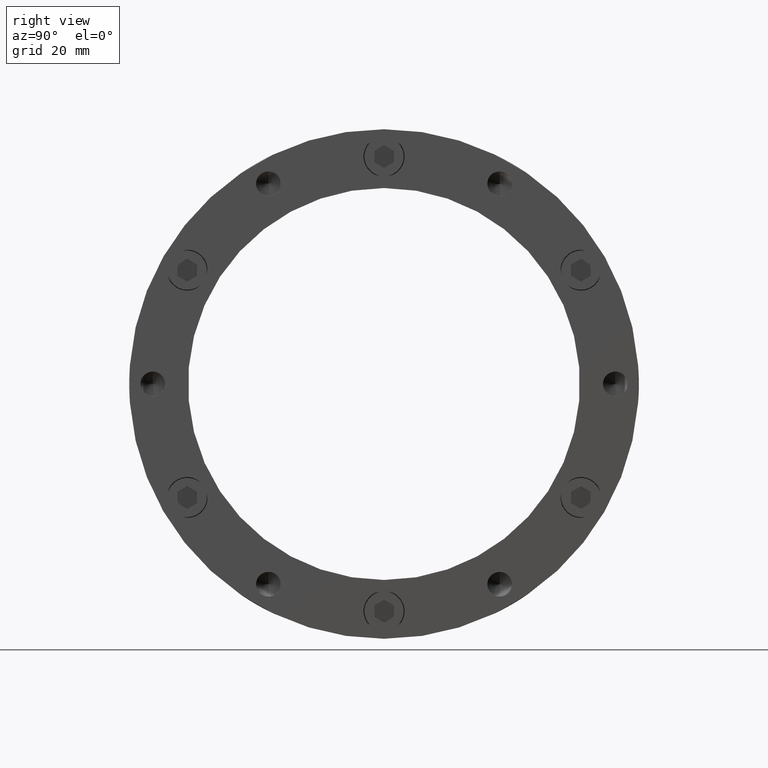
[diagram: clean part render]
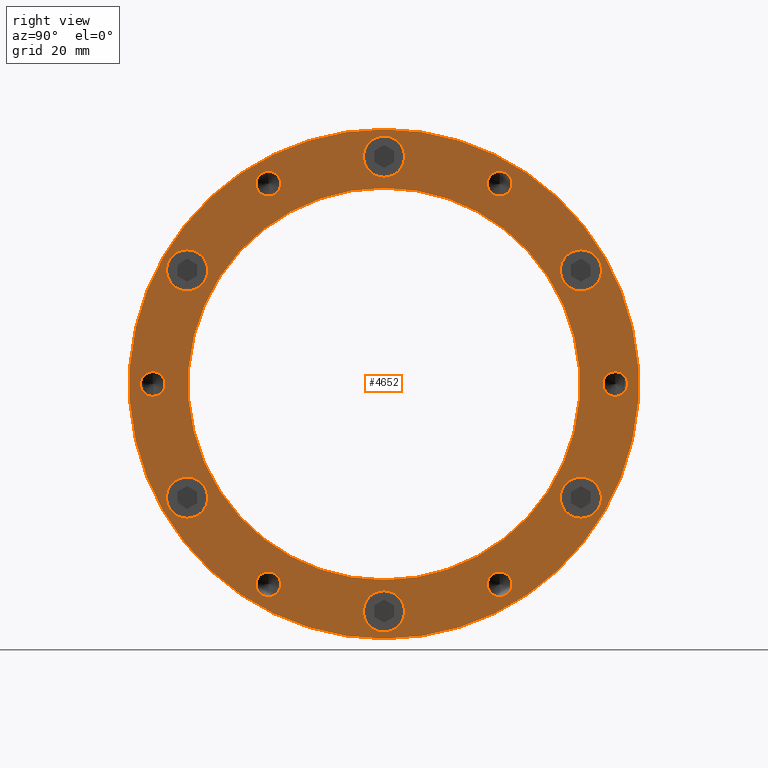
[diagram: same view with one face highlighted and labeled with its STEP entity id]
A machine part, right view. The second image highlights one B-rep face of the part: STEP entity #4652.
In plain terms, the highlighted planar face has unit normal (1, 0, 0).
Its self-contained STEP definition (entity closure, byte-faithful):
#59 = FACE_BOUND ( 'NONE', #3239, .T. ) ;
#60 = FACE_BOUND ( 'NONE', #3323, .T. ) ;
#62 = FACE_BOUND ( 'NONE', #3322, .T. ) ;
#65 = FACE_BOUND ( 'NONE', #3240, .T. ) ;
#66 = FACE_OUTER_BOUND ( 'NONE', #3258, .T. ) ;
#69 = FACE_BOUND ( 'NONE', #3373, .T. ) ;
#70 = FACE_BOUND ( 'NONE', #3273, .T. ) ;
#71 = FACE_BOUND ( 'NONE', #3263, .T. ) ;
#74 = FACE_BOUND ( 'NONE', #3200, .T. ) ;
#76 = FACE_BOUND ( 'NONE', #3423, .T. ) ;
#77 = FACE_BOUND ( 'NONE', #3362, .T. ) ;
#78 = FACE_BOUND ( 'NONE', #3248, .T. ) ;
#79 = FACE_BOUND ( 'NONE', #3387, .T. ) ;
#81 = FACE_BOUND ( 'NONE', #3282, .T. ) ;
#309 = CIRCLE ( 'NONE', #4095, 3.149999999999999900 ) ;
#310 = CIRCLE ( 'NONE', #4096, 3.149999999999999900 ) ;
#311 = CIRCLE ( 'NONE', #4097, 3.149999999999999900 ) ;
#345 = CIRCLE ( 'NONE', #4117, 50.00000000000000000 ) ;
#353 = CIRCLE ( 'NONE', #4119, 3.149999999999999900 ) ;
#356 = CIRCLE ( 'NONE', #4120, 3.149999999999999900 ) ;
#363 = CIRCLE ( 'NONE', #4122, 3.149999999999999900 ) ;
#397 = EDGE_CURVE ( 'NONE', #3192, #3264, #3957, .T. ) ;
#399 = EDGE_CURVE ( 'NONE', #3432, #3243, #3952, .T. ) ;
#416 = EDGE_CURVE ( 'NONE', #3281, #3227, #3928, .T. ) ;
#434 = EDGE_CURVE ( 'NONE', #3231, #3228, #2913, .T. ) ;
#448 = EDGE_CURVE ( 'NONE', #3209, #3208, #2894, .T. ) ;
#463 = EDGE_CURVE ( 'NONE', #3223, #3224, #2880, .T. ) ;
#471 = EDGE_CURVE ( 'NONE', #3245, #3266, #2871, .T. ) ;
#472 = EDGE_CURVE ( 'NONE', #3216, #3213, #2872, .T. ) ;
#474 = EDGE_CURVE ( 'NONE', #3212, #3217, #2869, .T. ) ;
#480 = EDGE_CURVE ( 'NONE', #3232, #3236, #2862, .T. ) ;
#508 = EDGE_CURVE ( 'NONE', #3227, #3281, #3732, .T. ) ;
#511 = EDGE_CURVE ( 'NONE', #3190, #3185, #3728, .T. ) ;
#514 = EDGE_CURVE ( 'NONE', #3224, #3223, #3724, .T. ) ;
#519 = EDGE_CURVE ( 'NONE', #3217, #3212, #3719, .T. ) ;
#524 = EDGE_CURVE ( 'NONE', #3228, #3231, #3711, .T. ) ;
#526 = EDGE_CURVE ( 'NONE', #3213, #3216, #3709, .T. ) ;
#532 = EDGE_CURVE ( 'NONE', #3203, #3207, #3697, .T. ) ;
#537 = EDGE_CURVE ( 'NONE', #3198, #3199, #3691, .T. ) ;
#545 = EDGE_CURVE ( 'NONE', #3243, #3432, #3679, .T. ) ;
#547 = EDGE_CURVE ( 'NONE', #3236, #3232, #3677, .T. ) ;
#552 = EDGE_CURVE ( 'NONE', #3219, #3218, #3670, .T. ) ;
#560 = EDGE_CURVE ( 'NONE', #3208, #3209, #363, .T. ) ;
#564 = EDGE_CURVE ( 'NONE', #3218, #3219, #356, .T. ) ;
#566 = EDGE_CURVE ( 'NONE', #3266, #3245, #353, .T. ) ;
#569 = EDGE_CURVE ( 'NONE', #3264, #3192, #345, .T. ) ;
#620 = CARTESIAN_POINT ( 'NONE',  ( 31.99999999999998600, 0.0000000000000000000, 0.0000000000000000000 ) ) ;
#621 = DIRECTION ( 'NONE',  ( -1.000000000000000000, -0.0000000000000000000, -0.0000000000000000000 ) ) ;
#622 = DIRECTION ( 'NONE',  ( 0.0000000000000000000, 0.0000000000000000000, -1.000000000000000000 ) ) ;
#629 = CARTESIAN_POINT ( 'NONE',  ( 31.99999999999998600, 0.0000000000000000000, 0.0000000000000000000 ) ) ;
#630 = DIRECTION ( 'NONE',  ( -1.000000000000000000, -0.0000000000000000000, -0.0000000000000000000 ) ) ;
#631 = DIRECTION ( 'NONE',  ( 0.0000000000000000000, 0.0000000000000000000, -1.000000000000000000 ) ) ;
#671 = CARTESIAN_POINT ( 'NONE',  ( 31.99999999999998600, 0.0000000000000000000, 58.00000000000002800 ) ) ;
#672 = DIRECTION ( 'NONE',  ( -1.000000000000000000, -0.0000000000000000000, -0.0000000000000000000 ) ) ;
#673 = DIRECTION ( 'NONE',  ( 0.0000000000000000000, 0.0000000000000000000, -1.000000000000000000 ) ) ;
#715 = CARTESIAN_POINT ( 'NONE',  ( 31.99999999999998600, -50.22947341949745900, 29.00000000000001800 ) ) ;
#716 = DIRECTION ( 'NONE',  ( -1.000000000000000000, -0.0000000000000000000, -0.0000000000000000000 ) ) ;
#717 = DIRECTION ( 'NONE',  ( 0.0000000000000000000, 0.0000000000000000000, -1.000000000000000000 ) ) ;
#753 = CARTESIAN_POINT ( 'NONE',  ( 31.99999999999998600, -59.00000000000000000, -4.440892000000000200E-014 ) ) ;
#754 = DIRECTION ( 'NONE',  ( -1.000000000000000000, -0.0000000000000000000, -0.0000000000000000000 ) ) ;
#755 = DIRECTION ( 'NONE',  ( 0.0000000000000000000, 0.0000000000000000000, -1.000000000000000000 ) ) ;
#798 = CARTESIAN_POINT ( 'NONE',  ( 31.99999999999998600, -8.881783999999999800E-015, -58.00000000000003600 ) ) ;
#799 = DIRECTION ( 'NONE',  ( -1.000000000000000000, -0.0000000000000000000, -0.0000000000000000000 ) ) ;
#800 = DIRECTION ( 'NONE',  ( 0.0000000000000000000, 0.0000000000000000000, -1.000000000000000000 ) ) ;
#822 = CARTESIAN_POINT ( 'NONE',  ( 31.99999999999998600, -29.49999999999996100, -51.09549882328190100 ) ) ;
#823 = DIRECTION ( 'NONE',  ( -1.000000000000000000, -0.0000000000000000000, -0.0000000000000000000 ) ) ;
#824 = DIRECTION ( 'NONE',  ( 0.0000000000000000000, 0.0000000000000000000, -1.000000000000000000 ) ) ;
#825 = CARTESIAN_POINT ( 'NONE',  ( 31.99999999999998600, 50.22947341949748800, 28.99999999999997200 ) ) ;
#826 = DIRECTION ( 'NONE',  ( -1.000000000000000000, -0.0000000000000000000, -0.0000000000000000000 ) ) ;
#827 = DIRECTION ( 'NONE',  ( 0.0000000000000000000, 0.0000000000000000000, -1.000000000000000000 ) ) ;
#831 = CARTESIAN_POINT ( 'NONE',  ( 31.99999999999998600, 50.22947341949745200, -29.00000000000003600 ) ) ;
#832 = DIRECTION ( 'NONE',  ( -1.000000000000000000, -0.0000000000000000000, -0.0000000000000000000 ) ) ;
#833 = DIRECTION ( 'NONE',  ( 0.0000000000000000000, 0.0000000000000000000, -1.000000000000000000 ) ) ;
#850 = CARTESIAN_POINT ( 'NONE',  ( 31.99999999999998600, -50.22947341949746700, -29.00000000000000400 ) ) ;
#851 = DIRECTION ( 'NONE',  ( -1.000000000000000000, -0.0000000000000000000, -0.0000000000000000000 ) ) ;
#852 = DIRECTION ( 'NONE',  ( 0.0000000000000000000, 0.0000000000000000000, -1.000000000000000000 ) ) ;
#1006 = CARTESIAN_POINT ( 'NONE',  ( 31.99999999999998600, 0.0000000000000000000, 58.00000000000002800 ) ) ;
#1007 = DIRECTION ( 'NONE',  ( -1.000000000000000000, -0.0000000000000000000, -0.0000000000000000000 ) ) ;
#1008 = DIRECTION ( 'NONE',  ( 0.0000000000000000000, 0.0000000000000000000, -1.000000000000000000 ) ) ;
#1018 = CARTESIAN_POINT ( 'NONE',  ( 31.99999999999998600, 29.50000000000000000, 51.09549882328189300 ) ) ;
#1019 = DIRECTION ( 'NONE',  ( -1.000000000000000000, -0.0000000000000000000, -0.0000000000000000000 ) ) ;
#1020 = DIRECTION ( 'NONE',  ( 0.0000000000000000000, 0.0000000000000000000, -1.000000000000000000 ) ) ;
#1022 = CARTESIAN_POINT ( 'NONE',  ( 31.99999999999998600, -8.881783999999999800E-015, -58.00000000000003600 ) ) ;
#1023 = DIRECTION ( 'NONE',  ( -1.000000000000000000, -0.0000000000000000000, -0.0000000000000000000 ) ) ;
#1024 = DIRECTION ( 'NONE',  ( 0.0000000000000000000, 0.0000000000000000000, -1.000000000000000000 ) ) ;
#1040 = CARTESIAN_POINT ( 'NONE',  ( 31.99999999999998600, 50.22947341949745200, -29.00000000000003600 ) ) ;
#1041 = DIRECTION ( 'NONE',  ( -1.000000000000000000, -0.0000000000000000000, -0.0000000000000000000 ) ) ;
#1042 = DIRECTION ( 'NONE',  ( 0.0000000000000000000, 0.0000000000000000000, -1.000000000000000000 ) ) ;
#1051 = CARTESIAN_POINT ( 'NONE',  ( 31.99999999999998600, -50.22947341949745900, 29.00000000000001800 ) ) ;
#1052 = DIRECTION ( 'NONE',  ( -1.000000000000000000, -0.0000000000000000000, -0.0000000000000000000 ) ) ;
#1053 = DIRECTION ( 'NONE',  ( 0.0000000000000000000, 0.0000000000000000000, -1.000000000000000000 ) ) ;
#1056 = CARTESIAN_POINT ( 'NONE',  ( 31.99999999999998600, 50.22947341949748800, 28.99999999999997200 ) ) ;
#1057 = DIRECTION ( 'NONE',  ( -1.000000000000000000, -0.0000000000000000000, -0.0000000000000000000 ) ) ;
#1058 = DIRECTION ( 'NONE',  ( 0.0000000000000000000, 0.0000000000000000000, -1.000000000000000000 ) ) ;
#1070 = CARTESIAN_POINT ( 'NONE',  ( 31.99999999999998600, 29.50000000000003600, -51.09549882328185800 ) ) ;
#1071 = DIRECTION ( 'NONE',  ( -1.000000000000000000, -0.0000000000000000000, -0.0000000000000000000 ) ) ;
#1072 = DIRECTION ( 'NONE',  ( 0.0000000000000000000, 0.0000000000000000000, -1.000000000000000000 ) ) ;
#1080 = CARTESIAN_POINT ( 'NONE',  ( 31.99999999999998600, 59.00000000000000000, 2.664535000000000000E-014 ) ) ;
#1081 = DIRECTION ( 'NONE',  ( -1.000000000000000000, -0.0000000000000000000, -0.0000000000000000000 ) ) ;
#1082 = DIRECTION ( 'NONE',  ( 0.0000000000000000000, 0.0000000000000000000, -1.000000000000000000 ) ) ;
#1102 = CARTESIAN_POINT ( 'NONE',  ( 31.99999999999998600, 0.0000000000000000000, 0.0000000000000000000 ) ) ;
#1103 = DIRECTION ( 'NONE',  ( -1.000000000000000000, -0.0000000000000000000, -0.0000000000000000000 ) ) ;
#1104 = DIRECTION ( 'NONE',  ( 0.0000000000000000000, 0.0000000000000000000, -1.000000000000000000 ) ) ;
#1108 = CARTESIAN_POINT ( 'NONE',  ( 31.99999999999998600, -50.22947341949746700, -29.00000000000000400 ) ) ;
#1109 = DIRECTION ( 'NONE',  ( -1.000000000000000000, -0.0000000000000000000, -0.0000000000000000000 ) ) ;
#1110 = DIRECTION ( 'NONE',  ( 0.0000000000000000000, 0.0000000000000000000, -1.000000000000000000 ) ) ;
#1125 = CARTESIAN_POINT ( 'NONE',  ( 31.99999999999998600, -29.50000000000004300, 51.09549882328185100 ) ) ;
#1126 = DIRECTION ( 'NONE',  ( -1.000000000000000000, -0.0000000000000000000, -0.0000000000000000000 ) ) ;
#1127 = DIRECTION ( 'NONE',  ( 0.0000000000000000000, 0.0000000000000000000, -1.000000000000000000 ) ) ;
#1143 = CARTESIAN_POINT ( 'NONE',  ( 31.99999999999998600, -59.00000000000000000, -4.440892000000000200E-014 ) ) ;
#1144 = DIRECTION ( 'NONE',  ( -1.000000000000000000, -0.0000000000000000000, -0.0000000000000000000 ) ) ;
#1145 = DIRECTION ( 'NONE',  ( 0.0000000000000000000, 0.0000000000000000000, -1.000000000000000000 ) ) ;
#1153 = CARTESIAN_POINT ( 'NONE',  ( 31.99999999999998600, -29.50000000000004300, 51.09549882328185100 ) ) ;
#1154 = DIRECTION ( 'NONE',  ( -1.000000000000000000, -0.0000000000000000000, -0.0000000000000000000 ) ) ;
#1155 = DIRECTION ( 'NONE',  ( 0.0000000000000000000, 0.0000000000000000000, -1.000000000000000000 ) ) ;
#1157 = CARTESIAN_POINT ( 'NONE',  ( 31.99999999999998600, -29.49999999999996100, -51.09549882328190100 ) ) ;
#1158 = DIRECTION ( 'NONE',  ( -1.000000000000000000, -0.0000000000000000000, -0.0000000000000000000 ) ) ;
#1159 = DIRECTION ( 'NONE',  ( 0.0000000000000000000, 0.0000000000000000000, -1.000000000000000000 ) ) ;
#1164 = CARTESIAN_POINT ( 'NONE',  ( 31.99999999999998600, 0.0000000000000000000, 0.0000000000000000000 ) ) ;
#1165 = DIRECTION ( 'NONE',  ( -1.000000000000000000, -0.0000000000000000000, -0.0000000000000000000 ) ) ;
#1166 = DIRECTION ( 'NONE',  ( 0.0000000000000000000, 0.0000000000000000000, -1.000000000000000000 ) ) ;
#1237 = CARTESIAN_POINT ( 'NONE',  ( 31.99999999999998600, 0.0000000000000000000, -50.00000000000000000 ) ) ;
#1238 = CARTESIAN_POINT ( 'NONE',  ( 31.99999999999998600, 29.50000000000000000, 51.09549882328189300 ) ) ;
#1239 = DIRECTION ( 'NONE',  ( -1.000000000000000000, -0.0000000000000000000, -0.0000000000000000000 ) ) ;
#1240 = DIRECTION ( 'NONE',  ( 0.0000000000000000000, 0.0000000000000000000, -1.000000000000000000 ) ) ;
#1242 = CARTESIAN_POINT ( 'NONE',  ( 31.99999999999998600, 29.50000000000000000, 54.24549882328189200 ) ) ;
#1243 = CARTESIAN_POINT ( 'NONE',  ( 31.99999999999998600, 59.00000000000000000, 2.664535000000000000E-014 ) ) ;
#1245 = DIRECTION ( 'NONE',  ( -1.000000000000000000, -0.0000000000000000000, -0.0000000000000000000 ) ) ;
#1247 = DIRECTION ( 'NONE',  ( 0.0000000000000000000, 0.0000000000000000000, -1.000000000000000000 ) ) ;
#1249 = CARTESIAN_POINT ( 'NONE',  ( 31.99999999999998600, 29.50000000000000000, 47.94549882328188800 ) ) ;
#1252 = CARTESIAN_POINT ( 'NONE',  ( 31.99999999999998600, 29.50000000000003600, -51.09549882328185800 ) ) ;
#1253 = EDGE_CURVE ( 'NONE', #3185, #3190, #311, .T. ) ;
#1254 = DIRECTION ( 'NONE',  ( -1.000000000000000000, -0.0000000000000000000, -0.0000000000000000000 ) ) ;
#1255 = EDGE_CURVE ( 'NONE', #3199, #3198, #310, .T. ) ;
#1256 = DIRECTION ( 'NONE',  ( 0.0000000000000000000, 0.0000000000000000000, -1.000000000000000000 ) ) ;
#1258 = EDGE_CURVE ( 'NONE', #3207, #3203, #309, .T. ) ;
#1265 = CARTESIAN_POINT ( 'NONE',  ( 31.99999999999998600, 59.00000000000000000, -3.149999999999973700 ) ) ;
#1266 = CARTESIAN_POINT ( 'NONE',  ( 31.99999999999998600, 59.00000000000000000, 3.150000000000026600 ) ) ;
#1269 = CARTESIAN_POINT ( 'NONE',  ( 31.99999999999998600, 29.50000000000003600, -54.24549882328185600 ) ) ;
#1273 = CARTESIAN_POINT ( 'NONE',  ( 31.99999999999998600, 29.50000000000003600, -47.94549882328185200 ) ) ;
#1274 = CARTESIAN_POINT ( 'NONE',  ( 31.99999999999998600, -59.00000000000000000, -3.150000000000044300 ) ) ;
#1275 = CARTESIAN_POINT ( 'NONE',  ( 31.99999999999998600, -59.00000000000000000, 3.149999999999955900 ) ) ;
#1278 = CARTESIAN_POINT ( 'NONE',  ( 31.99999999999998600, 50.22947341949745200, -23.75000000000003600 ) ) ;
#1279 = CARTESIAN_POINT ( 'NONE',  ( 31.99999999999998600, 50.22947341949748800, 23.74999999999996800 ) ) ;
#1282 = CARTESIAN_POINT ( 'NONE',  ( 31.99999999999998600, 50.22947341949748800, 34.24999999999997200 ) ) ;
#1283 = CARTESIAN_POINT ( 'NONE',  ( 31.99999999999998600, 50.22947341949745200, -34.25000000000003600 ) ) ;
#1284 = CARTESIAN_POINT ( 'NONE',  ( 31.99999999999998600, -29.50000000000004300, 47.94549882328184500 ) ) ;
#1285 = CARTESIAN_POINT ( 'NONE',  ( 31.99999999999998600, -29.50000000000004300, 54.24549882328184900 ) ) ;
#1289 = CARTESIAN_POINT ( 'NONE',  ( 31.99999999999998600, -8.238844430447640300E-015, -52.75000000000004300 ) ) ;
#1290 = CARTESIAN_POINT ( 'NONE',  ( 31.99999999999998600, -8.881783999999999800E-015, -63.25000000000004300 ) ) ;
#1293 = CARTESIAN_POINT ( 'NONE',  ( 31.99999999999998600, 6.429395695523607100E-016, 63.25000000000002800 ) ) ;
#1294 = CARTESIAN_POINT ( 'NONE',  ( 31.99999999999998600, -50.22947341949745900, 34.25000000000001400 ) ) ;
#1297 = CARTESIAN_POINT ( 'NONE',  ( 31.99999999999998600, -50.22947341949745900, 23.75000000000001800 ) ) ;
#1298 = CARTESIAN_POINT ( 'NONE',  ( 31.99999999999998600, -50.22947341949746700, -34.25000000000000000 ) ) ;
#1302 = CARTESIAN_POINT ( 'NONE',  ( 31.99999999999998600, -50.22947341949746700, -23.75000000000000400 ) ) ;
#1306 = CARTESIAN_POINT ( 'NONE',  ( 31.99999999999998600, 0.0000000000000000000, -65.00000000000000000 ) ) ;
#1307 = CARTESIAN_POINT ( 'NONE',  ( 31.99999999999998600, -29.49999999999996100, -47.94549882328189500 ) ) ;
#1314 = CARTESIAN_POINT ( 'NONE',  ( 31.99999999999998600, 6.123233995736766100E-015, 50.00000000000000000 ) ) ;
#1316 = CARTESIAN_POINT ( 'NONE',  ( 31.99999999999998600, -29.49999999999996100, -54.24549882328189900 ) ) ;
#1317 = CARTESIAN_POINT ( 'NONE',  ( 31.99999999999998600, 0.0000000000000000000, 52.75000000000003600 ) ) ;
#1327 = CARTESIAN_POINT ( 'NONE',  ( 31.99999999999998600, 7.960204194457797300E-015, 65.00000000000000000 ) ) ;
#1781 = DIRECTION ( 'NONE',  ( 1.000000000000000000, -0.0000000000000000000, 0.0000000000000000000 ) ) ;
#1785 = CARTESIAN_POINT ( 'NONE',  ( 31.99999999999998600, 57.50000000000000000, 0.0000000000000000000 ) ) ;
#1786 = PLANE ( 'NONE',  #3896 ) ;
#1787 = DIRECTION ( 'NONE',  ( 0.0000000000000000000, 0.0000000000000000000, -1.000000000000000000 ) ) ;
#2862 = CIRCLE ( 'NONE', #4160, 5.249999999999997300 ) ;
#2869 = CIRCLE ( 'NONE', #4163, 5.250000000000000900 ) ;
#2871 = CIRCLE ( 'NONE', #4166, 3.149999999999999900 ) ;
#2872 = CIRCLE ( 'NONE', #4165, 5.250000000000000900 ) ;
#2880 = CIRCLE ( 'NONE', #4174, 5.250000000000004400 ) ;
#2894 = CIRCLE ( 'NONE', #4189, 3.149999999999999900 ) ;
#2913 = CIRCLE ( 'NONE', #4201, 5.250000000000000900 ) ;
#3033 = ORIENTED_EDGE ( 'NONE', *, *, #399, .F. ) ;
#3034 = ORIENTED_EDGE ( 'NONE', *, *, #545, .F. ) ;
#3035 = ORIENTED_EDGE ( 'NONE', *, *, #1253, .T. ) ;
#3036 = ORIENTED_EDGE ( 'NONE', *, *, #511, .T. ) ;
#3037 = ORIENTED_EDGE ( 'NONE', *, *, #1255, .T. ) ;
#3038 = ORIENTED_EDGE ( 'NONE', *, *, #537, .T. ) ;
#3039 = ORIENTED_EDGE ( 'NONE', *, *, #1258, .T. ) ;
#3040 = ORIENTED_EDGE ( 'NONE', *, *, #532, .T. ) ;
#3041 = ORIENTED_EDGE ( 'NONE', *, *, #471, .T. ) ;
#3042 = ORIENTED_EDGE ( 'NONE', *, *, #566, .T. ) ;
#3043 = ORIENTED_EDGE ( 'NONE', *, *, #448, .T. ) ;
#3044 = ORIENTED_EDGE ( 'NONE', *, *, #560, .T. ) ;
#3045 = ORIENTED_EDGE ( 'NONE', *, *, #552, .T. ) ;
#3046 = ORIENTED_EDGE ( 'NONE', *, *, #564, .T. ) ;
#3047 = ORIENTED_EDGE ( 'NONE', *, *, #472, .T. ) ;
#3048 = ORIENTED_EDGE ( 'NONE', *, *, #526, .T. ) ;
#3049 = ORIENTED_EDGE ( 'NONE', *, *, #474, .T. ) ;
#3050 = ORIENTED_EDGE ( 'NONE', *, *, #519, .T. ) ;
#3051 = ORIENTED_EDGE ( 'NONE', *, *, #463, .T. ) ;
#3052 = ORIENTED_EDGE ( 'NONE', *, *, #514, .T. ) ;
#3053 = ORIENTED_EDGE ( 'NONE', *, *, #547, .T. ) ;
#3054 = ORIENTED_EDGE ( 'NONE', *, *, #480, .T. ) ;
#3055 = ORIENTED_EDGE ( 'NONE', *, *, #524, .T. ) ;
#3056 = ORIENTED_EDGE ( 'NONE', *, *, #434, .T. ) ;
#3057 = ORIENTED_EDGE ( 'NONE', *, *, #508, .T. ) ;
#3058 = ORIENTED_EDGE ( 'NONE', *, *, #416, .T. ) ;
#3059 = ORIENTED_EDGE ( 'NONE', *, *, #569, .T. ) ;
#3060 = ORIENTED_EDGE ( 'NONE', *, *, #397, .T. ) ;
#3185 = VERTEX_POINT ( 'NONE', #1242 ) ;
#3190 = VERTEX_POINT ( 'NONE', #1249 ) ;
#3192 = VERTEX_POINT ( 'NONE', #1237 ) ;
#3198 = VERTEX_POINT ( 'NONE', #1265 ) ;
#3199 = VERTEX_POINT ( 'NONE', #1266 ) ;
#3200 = EDGE_LOOP ( 'NONE', ( #3036, #3035 ) ) ;
#3203 = VERTEX_POINT ( 'NONE', #1269 ) ;
#3207 = VERTEX_POINT ( 'NONE', #1273 ) ;
#3208 = VERTEX_POINT ( 'NONE', #1274 ) ;
#3209 = VERTEX_POINT ( 'NONE', #1275 ) ;
#3212 = VERTEX_POINT ( 'NONE', #1278 ) ;
#3213 = VERTEX_POINT ( 'NONE', #1279 ) ;
#3216 = VERTEX_POINT ( 'NONE', #1282 ) ;
#3217 = VERTEX_POINT ( 'NONE', #1283 ) ;
#3218 = VERTEX_POINT ( 'NONE', #1284 ) ;
#3219 = VERTEX_POINT ( 'NONE', #1285 ) ;
#3223 = VERTEX_POINT ( 'NONE', #1289 ) ;
#3224 = VERTEX_POINT ( 'NONE', #1290 ) ;
#3227 = VERTEX_POINT ( 'NONE', #1293 ) ;
#3228 = VERTEX_POINT ( 'NONE', #1294 ) ;
#3231 = VERTEX_POINT ( 'NONE', #1297 ) ;
#3232 = VERTEX_POINT ( 'NONE', #1298 ) ;
#3236 = VERTEX_POINT ( 'NONE', #1302 ) ;
#3239 = EDGE_LOOP ( 'NONE', ( #3038, #3037 ) ) ;
#3240 = EDGE_LOOP ( 'NONE', ( #3040, #3039 ) ) ;
#3243 = VERTEX_POINT ( 'NONE', #1306 ) ;
#3245 = VERTEX_POINT ( 'NONE', #1307 ) ;
#3248 = EDGE_LOOP ( 'NONE', ( #3048, #3047 ) ) ;
#3258 = EDGE_LOOP ( 'NONE', ( #3034, #3033 ) ) ;
#3263 = EDGE_LOOP ( 'NONE', ( #3044, #3043 ) ) ;
#3264 = VERTEX_POINT ( 'NONE', #1314 ) ;
#3266 = VERTEX_POINT ( 'NONE', #1316 ) ;
#3273 = EDGE_LOOP ( 'NONE', ( #3060, #3059 ) ) ;
#3281 = VERTEX_POINT ( 'NONE', #1317 ) ;
#3282 = EDGE_LOOP ( 'NONE', ( #3042, #3041 ) ) ;
#3322 = EDGE_LOOP ( 'NONE', ( #3056, #3055 ) ) ;
#3323 = EDGE_LOOP ( 'NONE', ( #3050, #3049 ) ) ;
#3362 = EDGE_LOOP ( 'NONE', ( #3058, #3057 ) ) ;
#3373 = EDGE_LOOP ( 'NONE', ( #3054, #3053 ) ) ;
#3387 = EDGE_LOOP ( 'NONE', ( #3046, #3045 ) ) ;
#3423 = EDGE_LOOP ( 'NONE', ( #3052, #3051 ) ) ;
#3432 = VERTEX_POINT ( 'NONE', #1327 ) ;
#3670 = CIRCLE ( 'NONE', #4124, 3.149999999999999900 ) ;
#3677 = CIRCLE ( 'NONE', #4128, 5.249999999999997300 ) ;
#3679 = CIRCLE ( 'NONE', #4130, 65.00000000000000000 ) ;
#3691 = CIRCLE ( 'NONE', #4137, 3.149999999999999900 ) ;
#3697 = CIRCLE ( 'NONE', #4139, 3.149999999999999900 ) ;
#3709 = CIRCLE ( 'NONE', #4141, 5.250000000000000900 ) ;
#3711 = CIRCLE ( 'NONE', #4142, 5.250000000000000900 ) ;
#3719 = CIRCLE ( 'NONE', #4144, 5.250000000000000900 ) ;
#3724 = CIRCLE ( 'NONE', #4148, 5.250000000000004400 ) ;
#3728 = CIRCLE ( 'NONE', #4149, 3.149999999999999900 ) ;
#3732 = CIRCLE ( 'NONE', #4152, 5.249999999999997300 ) ;
#3896 = AXIS2_PLACEMENT_3D ( 'NONE', #1785, #1781, #1787 ) ;
#3928 = CIRCLE ( 'NONE', #4210, 5.249999999999997300 ) ;
#3952 = CIRCLE ( 'NONE', #4218, 65.00000000000000000 ) ;
#3957 = CIRCLE ( 'NONE', #4220, 50.00000000000000000 ) ;
#4095 = AXIS2_PLACEMENT_3D ( 'NONE', #1252, #1254, #1256 ) ;
#4096 = AXIS2_PLACEMENT_3D ( 'NONE', #1243, #1245, #1247 ) ;
#4097 = AXIS2_PLACEMENT_3D ( 'NONE', #1238, #1239, #1240 ) ;
#4117 = AXIS2_PLACEMENT_3D ( 'NONE', #1164, #1165, #1166 ) ;
#4119 = AXIS2_PLACEMENT_3D ( 'NONE', #1157, #1158, #1159 ) ;
#4120 = AXIS2_PLACEMENT_3D ( 'NONE', #1153, #1154, #1155 ) ;
#4122 = AXIS2_PLACEMENT_3D ( 'NONE', #1143, #1144, #1145 ) ;
#4124 = AXIS2_PLACEMENT_3D ( 'NONE', #1125, #1126, #1127 ) ;
#4128 = AXIS2_PLACEMENT_3D ( 'NONE', #1108, #1109, #1110 ) ;
#4130 = AXIS2_PLACEMENT_3D ( 'NONE', #1102, #1103, #1104 ) ;
#4137 = AXIS2_PLACEMENT_3D ( 'NONE', #1080, #1081, #1082 ) ;
#4139 = AXIS2_PLACEMENT_3D ( 'NONE', #1070, #1071, #1072 ) ;
#4141 = AXIS2_PLACEMENT_3D ( 'NONE', #1056, #1057, #1058 ) ;
#4142 = AXIS2_PLACEMENT_3D ( 'NONE', #1051, #1052, #1053 ) ;
#4144 = AXIS2_PLACEMENT_3D ( 'NONE', #1040, #1041, #1042 ) ;
#4148 = AXIS2_PLACEMENT_3D ( 'NONE', #1022, #1023, #1024 ) ;
#4149 = AXIS2_PLACEMENT_3D ( 'NONE', #1018, #1019, #1020 ) ;
#4152 = AXIS2_PLACEMENT_3D ( 'NONE', #1006, #1007, #1008 ) ;
#4160 = AXIS2_PLACEMENT_3D ( 'NONE', #850, #851, #852 ) ;
#4163 = AXIS2_PLACEMENT_3D ( 'NONE', #831, #832, #833 ) ;
#4165 = AXIS2_PLACEMENT_3D ( 'NONE', #825, #826, #827 ) ;
#4166 = AXIS2_PLACEMENT_3D ( 'NONE', #822, #823, #824 ) ;
#4174 = AXIS2_PLACEMENT_3D ( 'NONE', #798, #799, #800 ) ;
#4189 = AXIS2_PLACEMENT_3D ( 'NONE', #753, #754, #755 ) ;
#4201 = AXIS2_PLACEMENT_3D ( 'NONE', #715, #716, #717 ) ;
#4210 = AXIS2_PLACEMENT_3D ( 'NONE', #671, #672, #673 ) ;
#4218 = AXIS2_PLACEMENT_3D ( 'NONE', #629, #630, #631 ) ;
#4220 = AXIS2_PLACEMENT_3D ( 'NONE', #620, #621, #622 ) ;
#4652 = ADVANCED_FACE ( 'NONE', ( #70, #77, #62, #69, #76, #60, #78, #79, #71, #81, #65, #59, #74, #66 ), #1786, .T. ) ;